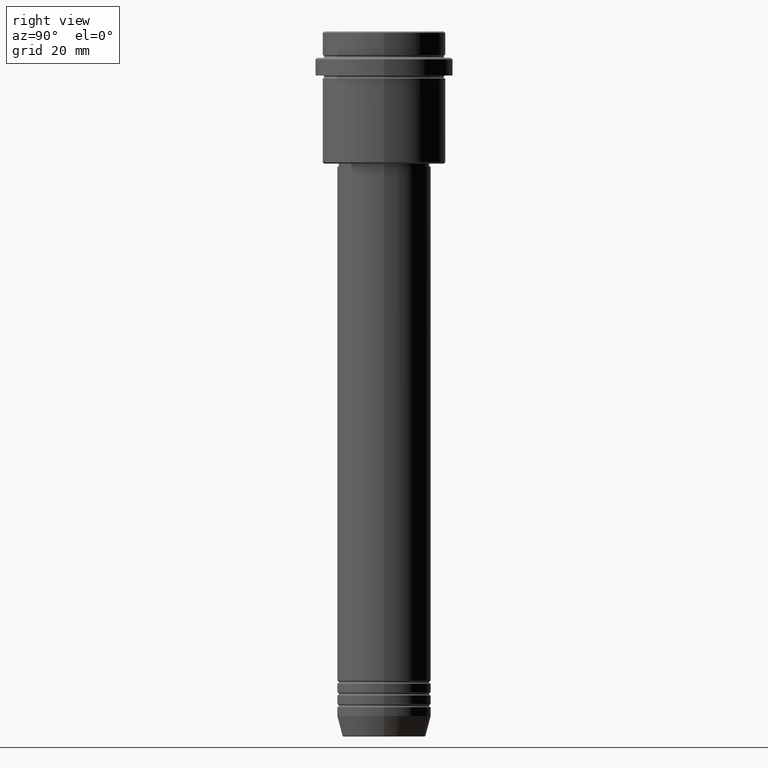
[diagram: clean part render]
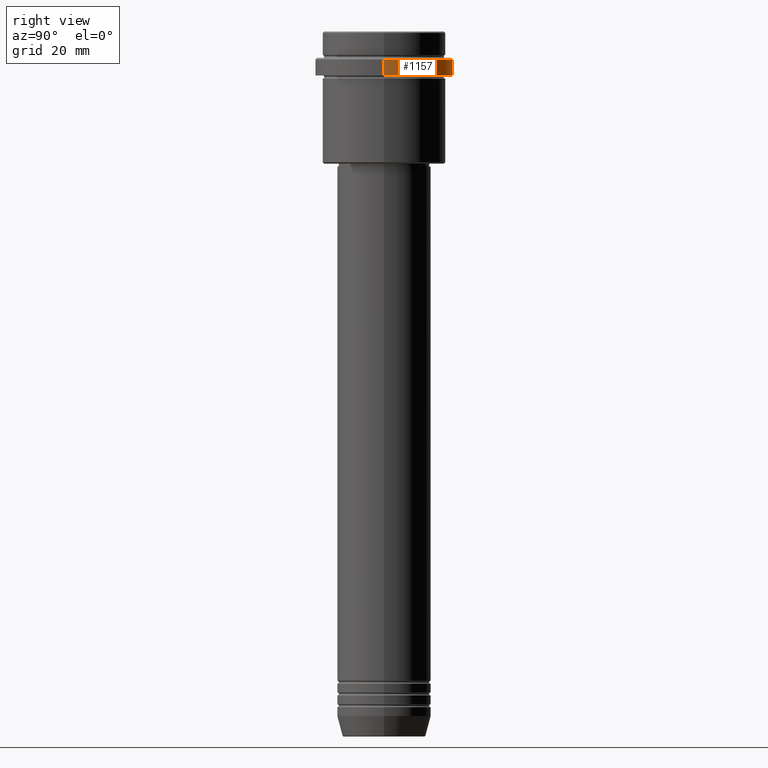
[diagram: same view with one face highlighted and labeled with its STEP entity id]
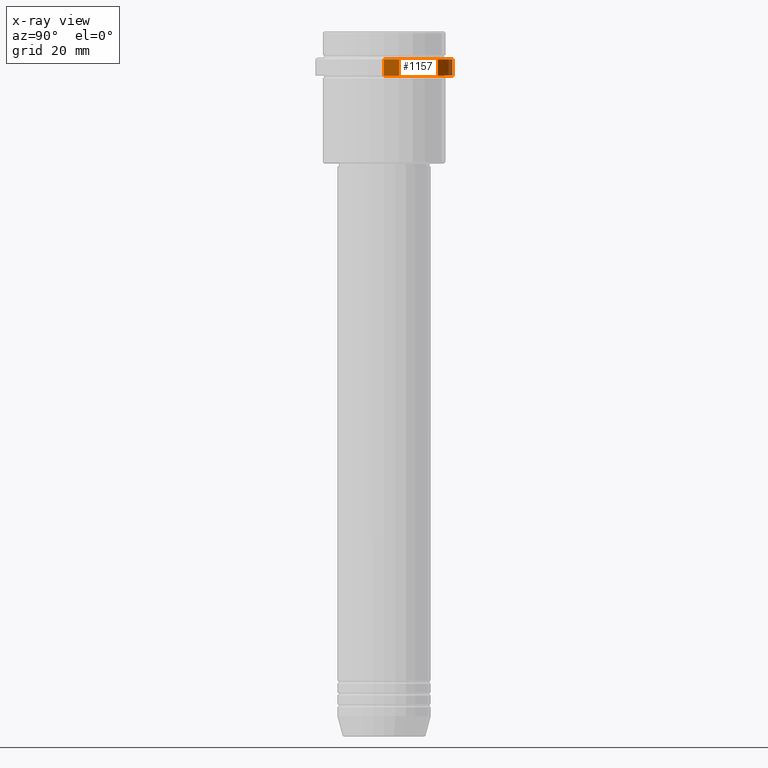
[diagram: x-ray of the same camera — body ghosted, the highlighted face saturated]
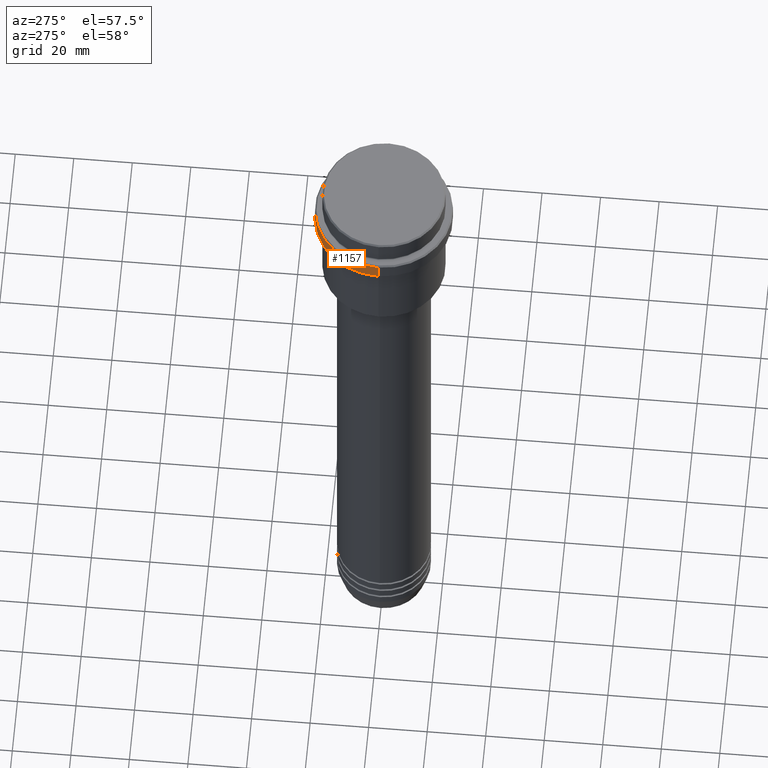
[diagram: same view with one face highlighted and labeled with its STEP entity id]
A machine part, right view. The second image highlights one B-rep face of the part: STEP entity #1157.
The next image is the same camera in x-ray: the body ghosted, the highlighted face saturated — about 0% of this face is hidden behind the body in this view.
A second angle (auxiliary view) of the same face is appended — the face is thin or edge-on in the first view.
In plain terms, the highlighted cylindrical surface (partial cylindrical patch) has radius 23.5 mm, axis along (-0, -0, 1).
Its self-contained STEP definition (entity closure, byte-faithful):
#53 = CARTESIAN_POINT ( 'NONE',  ( -23.50000000000000000, 2.877919977996280320E-15, 0.000000000000000000 ) ) ;
#95 = VERTEX_POINT ( 'NONE', #691 ) ;
#97 = CYLINDRICAL_SURFACE ( 'NONE', #772, 23.50000000000000000 ) ;
#113 = DIRECTION ( 'NONE',  ( -0.000000000000000000, -0.000000000000000000, 1.000000000000000000 ) ) ;
#115 = EDGE_CURVE ( 'NONE', #95, #793, #146, .T. ) ;
#142 = VECTOR ( 'NONE', #272, 1000.000000000000000 ) ;
#146 = LINE ( 'NONE', #53, #1159 ) ;
#164 = CARTESIAN_POINT ( 'NONE',  ( 0.000000000000000000, 0.000000000000000000, -9.500000000000001776 ) ) ;
#180 = CARTESIAN_POINT ( 'NONE',  ( 23.50000000000000000, 0.000000000000000000, 0.000000000000000000 ) ) ;
#219 = ORIENTED_EDGE ( 'NONE', *, *, #329, .T. ) ;
#272 = DIRECTION ( 'NONE',  ( -0.000000000000000000, -0.000000000000000000, 1.000000000000000000 ) ) ;
#285 = EDGE_LOOP ( 'NONE', ( #1123, #419, #219, #628 ) ) ;
#329 = EDGE_CURVE ( 'NONE', #793, #497, #923, .T. ) ;
#419 = ORIENTED_EDGE ( 'NONE', *, *, #115, .T. ) ;
#497 = VERTEX_POINT ( 'NONE', #692 ) ;
#533 = CARTESIAN_POINT ( 'NONE',  ( 0.000000000000000000, 0.000000000000000000, 0.000000000000000000 ) ) ;
#553 = CARTESIAN_POINT ( 'NONE',  ( -23.50000000000000000, 2.877919977996280320E-15, -9.500000000000001776 ) ) ;
#572 = CIRCLE ( 'NONE', #1372, 23.50000000000000355 ) ;
#584 = CARTESIAN_POINT ( 'NONE',  ( 0.000000000000000000, 0.000000000000000000, -15.00000000000000178 ) ) ;
#609 = DIRECTION ( 'NONE',  ( 0.000000000000000000, 0.000000000000000000, -1.000000000000000000 ) ) ;
#628 = ORIENTED_EDGE ( 'NONE', *, *, #974, .F. ) ;
#691 = CARTESIAN_POINT ( 'NONE',  ( -23.50000000000000711, 2.877919977996281109E-15, -15.00000000000000178 ) ) ;
#692 = CARTESIAN_POINT ( 'NONE',  ( 23.50000000000000000, 0.000000000000000000, -9.500000000000001776 ) ) ;
#701 = CARTESIAN_POINT ( 'NONE',  ( 23.50000000000000355, 0.000000000000000000, -15.00000000000000178 ) ) ;
#727 = DIRECTION ( 'NONE',  ( 1.000000000000000000, 0.000000000000000000, 0.000000000000000000 ) ) ;
#772 = AXIS2_PLACEMENT_3D ( 'NONE', #533, #113, #848 ) ;
#793 = VERTEX_POINT ( 'NONE', #553 ) ;
#848 = DIRECTION ( 'NONE',  ( 1.000000000000000000, 0.000000000000000000, 0.000000000000000000 ) ) ;
#867 = FACE_OUTER_BOUND ( 'NONE', #285, .T. ) ;
#882 = DIRECTION ( 'NONE',  ( -0.000000000000000000, -0.000000000000000000, 1.000000000000000000 ) ) ;
#922 = LINE ( 'NONE', #180, #142 ) ;
#923 = CIRCLE ( 'NONE', #1134, 23.50000000000000000 ) ;
#937 = EDGE_CURVE ( 'NONE', #1377, #95, #572, .T. ) ;
#974 = EDGE_CURVE ( 'NONE', #1377, #497, #922, .T. ) ;
#998 = DIRECTION ( 'NONE',  ( -0.000000000000000000, -0.000000000000000000, 1.000000000000000000 ) ) ;
#1123 = ORIENTED_EDGE ( 'NONE', *, *, #937, .T. ) ;
#1134 = AXIS2_PLACEMENT_3D ( 'NONE', #164, #609, #727 ) ;
#1157 = ADVANCED_FACE ( 'NONE', ( #867 ), #97, .T. ) ;
#1159 = VECTOR ( 'NONE', #998, 1000.000000000000000 ) ;
#1330 = DIRECTION ( 'NONE',  ( 1.000000000000000000, 0.000000000000000000, 0.000000000000000000 ) ) ;
#1372 = AXIS2_PLACEMENT_3D ( 'NONE', #584, #882, #1330 ) ;
#1377 = VERTEX_POINT ( 'NONE', #701 ) ;